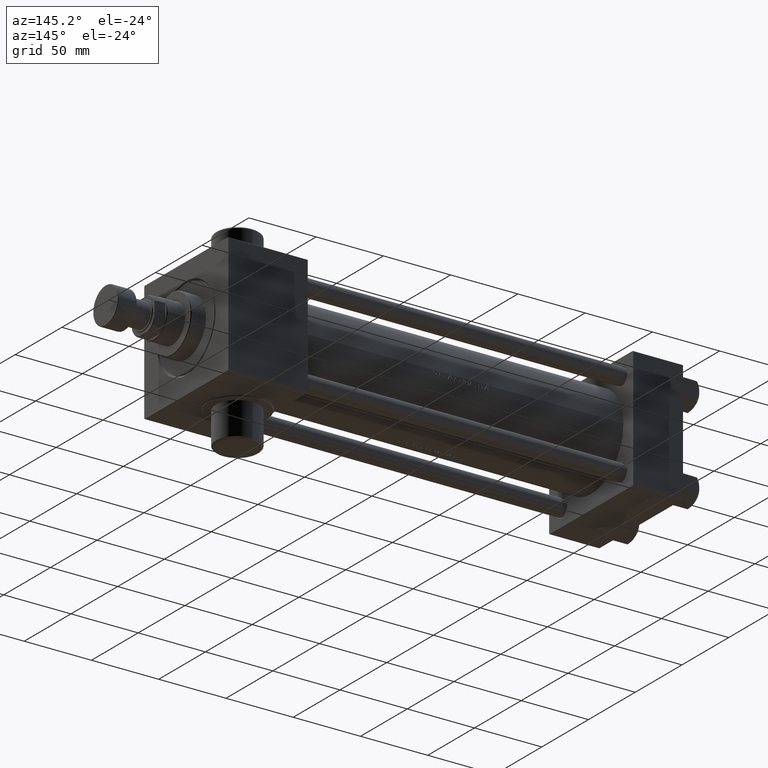
[diagram: clean part render]
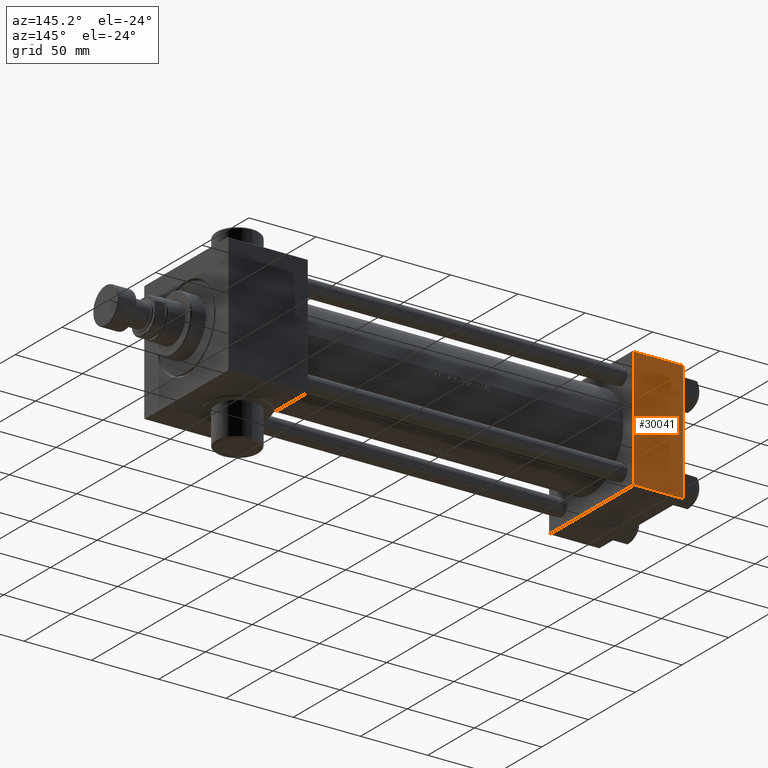
[diagram: same view with one face highlighted and labeled with its STEP entity id]
A machine part, auxiliary view. The second image highlights one B-rep face of the part: STEP entity #30041.
In plain terms, the highlighted planar face has unit normal (0, -1, -0).
Its self-contained STEP definition (entity closure, byte-faithful):
#447 = PLANE ( 'NONE',  #38213 ) ;
#676 = EDGE_CURVE ( 'NONE', #34048, #3874, #24253, .T. ) ;
#1190 = ORIENTED_EDGE ( 'NONE', *, *, #676, .T. ) ;
#1627 = CARTESIAN_POINT ( 'NONE',  ( 0.000000000000000000, 44.49999999999998579, 45.00000000000001421 ) ) ;
#3342 = CARTESIAN_POINT ( 'NONE',  ( 0.000000000000000000, 44.49999999999998579, 45.00000000000001421 ) ) ;
#3874 = VERTEX_POINT ( 'NONE', #39770 ) ;
#4095 = EDGE_CURVE ( 'NONE', #12002, #34048, #17093, .T. ) ;
#6047 = ORIENTED_EDGE ( 'NONE', *, *, #45702, .F. ) ;
#7118 = FACE_OUTER_BOUND ( 'NONE', #7798, .T. ) ;
#7798 = EDGE_LOOP ( 'NONE', ( #14230, #1190, #6047, #25286 ) ) ;
#9958 = CARTESIAN_POINT ( 'NONE',  ( 0.000000000000000000, 44.99999999999998579, 45.00000000000001421 ) ) ;
#10495 = DIRECTION ( 'NONE',  ( 0.000000000000000000, -1.000000000000000000, -1.541976423090495387E-16 ) ) ;
#12002 = VERTEX_POINT ( 'NONE', #3342 ) ;
#14230 = ORIENTED_EDGE ( 'NONE', *, *, #4095, .T. ) ;
#14959 = DIRECTION ( 'NONE',  ( 0.000000000000000000, 1.541976423090495633E-16, -1.000000000000000000 ) ) ;
#16129 = DIRECTION ( 'NONE',  ( -1.000000000000000000, 0.000000000000000000, 0.000000000000000000 ) ) ;
#17093 = LINE ( 'NONE', #9958, #36007 ) ;
#18203 = VECTOR ( 'NONE', #10495, 1000.000000000000000 ) ;
#18372 = CARTESIAN_POINT ( 'NONE',  ( 37.00000000000000000, 44.49999999999998579, 45.00000000000001421 ) ) ;
#24248 = VECTOR ( 'NONE', #16129, 1000.000000000000000 ) ;
#24253 = LINE ( 'NONE', #38998, #39140 ) ;
#25255 = LINE ( 'NONE', #25484, #18203 ) ;
#25286 = ORIENTED_EDGE ( 'NONE', *, *, #41612, .T. ) ;
#25484 = CARTESIAN_POINT ( 'NONE',  ( 37.00000000000000000, 44.99999999999998579, 45.00000000000001421 ) ) ;
#27309 = LINE ( 'NONE', #1627, #24248 ) ;
#27579 = DIRECTION ( 'NONE',  ( 0.000000000000000000, -1.000000000000000000, -1.541976423090495387E-16 ) ) ;
#30041 = ADVANCED_FACE ( 'NONE', ( #7118 ), #447, .F. ) ;
#32580 = CARTESIAN_POINT ( 'NONE',  ( 37.00000000000000000, 44.99999999999998579, 45.00000000000001421 ) ) ;
#34048 = VERTEX_POINT ( 'NONE', #37060 ) ;
#36007 = VECTOR ( 'NONE', #27579, 1000.000000000000000 ) ;
#37060 = CARTESIAN_POINT ( 'NONE',  ( 0.000000000000000000, -44.49999999999995737, 45.00000000000000000 ) ) ;
#38213 = AXIS2_PLACEMENT_3D ( 'NONE', #32580, #14959, #47103 ) ;
#38998 = CARTESIAN_POINT ( 'NONE',  ( 37.00000000000000000, -44.49999999999998579, 45.00000000000000000 ) ) ;
#39140 = VECTOR ( 'NONE', #41879, 1000.000000000000000 ) ;
#39770 = CARTESIAN_POINT ( 'NONE',  ( 37.00000000000000000, -44.49999999999995737, 45.00000000000000000 ) ) ;
#41612 = EDGE_CURVE ( 'NONE', #45336, #12002, #27309, .T. ) ;
#41879 = DIRECTION ( 'NONE',  ( 1.000000000000000000, 0.000000000000000000, 0.000000000000000000 ) ) ;
#45336 = VERTEX_POINT ( 'NONE', #18372 ) ;
#45702 = EDGE_CURVE ( 'NONE', #45336, #3874, #25255, .T. ) ;
#47103 = DIRECTION ( 'NONE',  ( 0.000000000000000000, 1.000000000000000000, 1.541976423090495633E-16 ) ) ;